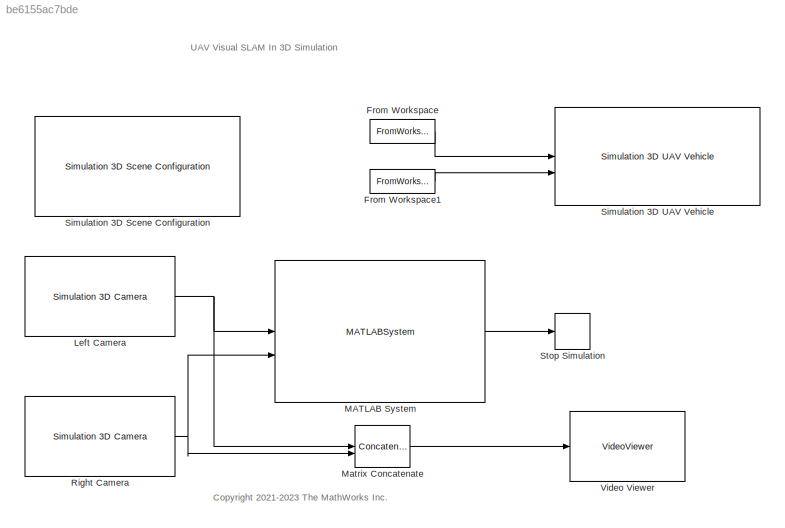
MODEL slx_be6155ac7bde
KIND model
CONFIG AbsTol = auto
CONFIG EnableMultiTasking = off
CONFIG FixedStep = auto
CONFIG MaxStep = auto
CONFIG MinStep = auto
CONFIG RelTol = 1e-3
CONFIG SampleTimeConstraint = Unconstrained
CONFIG SolverName = FixedStepAuto
CONFIG StartFcn = open_system([gcs, '/Video Viewer'])
CONFIG StartTime = 0.0
CONFIG StopTime = pos(end,1)
BLOCK [FromWorkspace] From Workspace
  VariableName = pos
BLOCK [FromWorkspace] From Workspace1
  VariableName = orientEuler
BLOCK [Reference] Left Camera  REF=sim3dcameralib/Simulation 3D Camera
  LibrarySourceBlock = drivingsim3d/Simulation 3D Camera
  Priority = 1
  SourceBlock = sim3dcameralib/Simulation 3D Camera
  SourceType = Simulation 3D Camera
BLOCK [MATLABSystem] MATLAB System
  Baseline = baseline
  FocalLength = focalLength
  ImageSize = imageSize
  MaskDisplay = disp(['Helper' char(10) 'Stereo Visual' char(10) 'SLAM System']);\nport_label('input',1,'ILeft');\nport_label('input',2,'IRight');\nport_label('output',1,'Tracking Lost');
  MaskType = HelperStereoVisualSLAMSystem
  PrincipalPoint = principalPoint
  SimulateUsing = Interpreted execution
  System = HelperStereoVisualSLAMSystem
BLOCK [Concatenate] Matrix Concatenate
  ConcatenateDimension = 2
  Mode = Multidimensional array
BLOCK [Reference] Right Camera  REF=sim3dcameralib/Simulation 3D Camera
  LibrarySourceBlock = drivingsim3d/Simulation 3D Camera
  Priority = 1
  SourceBlock = sim3dcameralib/Simulation 3D Camera
  SourceType = Simulation 3D Camera
BLOCK [Reference] Simulation 3D Scene Configuration  REF=sim3dlib/Simulation 3D Scene Configuration
  LibrarySourceBlock = uavsim3dlib/Simulation 3D Scene Configuration
  Priority = 0
  SourceBlock = sim3dlib/Simulation 3D Scene Configuration
  SourceType = Simulation 3D Scene Configuration
BLOCK [Reference] Simulation 3D UAV Vehicle  REF=uavsim3dlib/Simulation 3D UAV Vehicle
  Priority = -1
  SourceBlock = uavsim3dlib/Simulation 3D UAV Vehicle
  SourceType = Simulation 3D UAV Vehicle
BLOCK [Stop] Stop Simulation
BLOCK [VideoViewer] Video Viewer
  FigPos = [187 1065 964 342]
  ScopeSpecificationString = vipscopes.VideoViewerScopeCfg('CurrentConfiguration', extmgr.ConfigurationSet(extmgr.Configuration('Core','General UI',true),extmgr.Configuration('Core','Source UI',true),extmgr.Configuration('Sources','WiredSimulink',true),extmgr.Configuration('Visuals','Video',true),extmgr.Configuration('Tools','Image Navigation Tools',true,'FitToView',true),extmgr.Configuration('Tools','Image Tool',true),extmgr...<+118ch>
  colormapValue = gray(256)
ANNOTATION (root): UAV Visual SLAM In 3D Simulation
ANNOTATION (root): <copyright redacted>
LINE From Workspace1:1 -> Simulation 3D UAV Vehicle:2
LINE From Workspace:1 -> Simulation 3D UAV Vehicle:1
NET Left Camera:1 -> MATLAB System:1, Matrix Concatenate:1
LINE MATLAB System:1 -> Stop Simulation:1
LINE Matrix Concatenate:1 -> Video Viewer:1
NET Right Camera:1 -> MATLAB System:2, Matrix Concatenate:2
note: NET lines group one-source signal fan-out (src -> all destinations, sorted); 1:1 wires keep LINE
